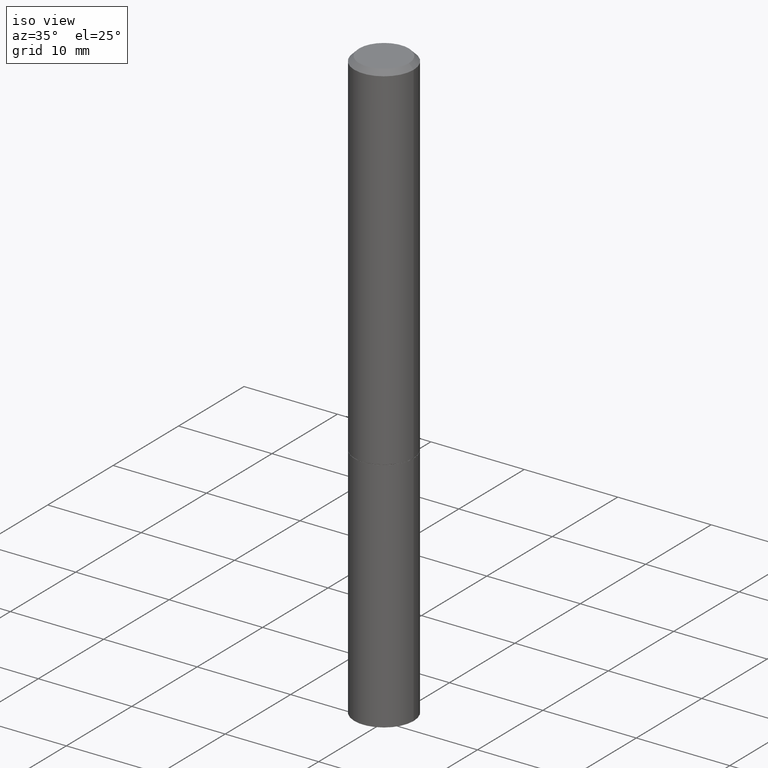
[diagram: clean part render]
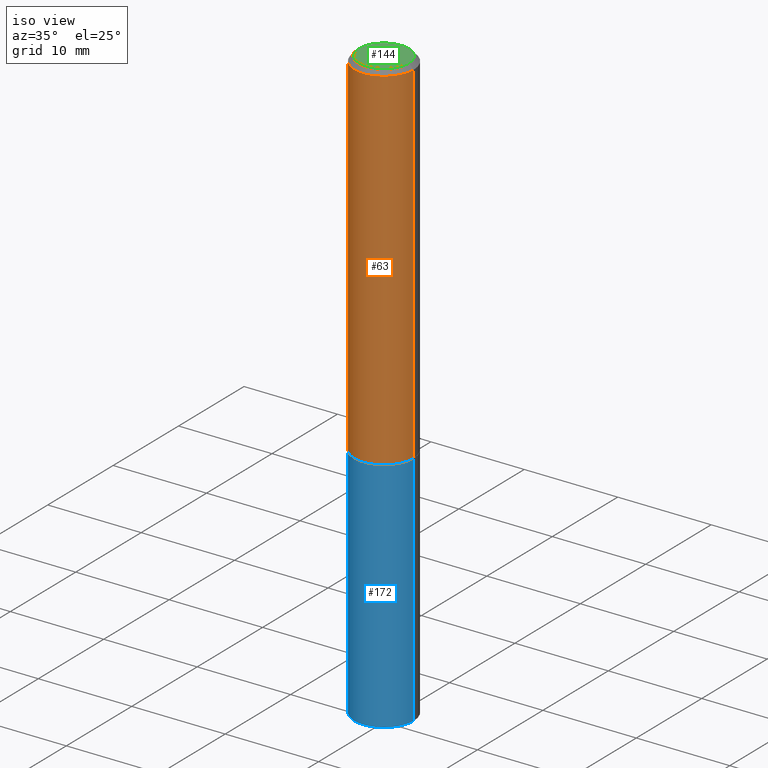
[diagram: same view with three faces highlighted in distinct colors, each labeled with its STEP entity id]
A machine part, iso view with three faces highlighted in distinct colors.
Their STEP definitions:

[orange] entity #63 — the highlighted cylindrical surface (edge-blend (fillet) strip) has radius 3.175 mm, axis along (-0, 0, 1).
#3 = FACE_OUTER_BOUND ( 'NONE', #124, .T. ) ;
#4 = CIRCLE ( 'NONE', #70, 0.1250000000000000278 ) ;
#7 = CARTESIAN_POINT ( 'NONE',  ( 3.665757740471519853E-29, -5.233730526925875958E-15, -1.499000000000000110 ) ) ;
#34 = DIRECTION ( 'NONE',  ( 1.000000000000000000, -6.982962677686266711E-15, 4.876176775795935793E-29 ) ) ;
#38 = CARTESIAN_POINT ( 'NONE',  ( 0.1250000000000000278, -6.106600861636660086E-15, -1.499000000000000110 ) ) ;
#49 = LINE ( 'NONE', #310, #242 ) ;
#50 = DIRECTION ( 'NONE',  ( -2.445468806185136877E-29, 3.491481338843145188E-15, 1.000000000000000000 ) ) ;
#57 = DIRECTION ( 'NONE',  ( -2.445468806185136597E-29, 3.491481338843145583E-15, 1.000000000000000000 ) ) ;
#62 = CYLINDRICAL_SURFACE ( 'NONE', #351, 0.1249999999999999306 ) ;
#63 = ADVANCED_FACE ( 'NONE', ( #3 ), #62, .T. ) ;
#70 = AXIS2_PLACEMENT_3D ( 'NONE', #7, #122, #88 ) ;
#88 = DIRECTION ( 'NONE',  ( 1.000000000000000000, -6.982962677686269077E-15, 0.000000000000000000 ) ) ;
#97 = ORIENTED_EDGE ( 'NONE', *, *, #153, .F. ) ;
#100 = EDGE_CURVE ( 'NONE', #297, #359, #4, .T. ) ;
#104 = EDGE_CURVE ( 'NONE', #193, #320, #169, .T. ) ;
#122 = DIRECTION ( 'NONE',  ( -2.445468806185136597E-29, 3.491481338843145583E-15, 1.000000000000000000 ) ) ;
#124 = EDGE_LOOP ( 'NONE', ( #97, #303, #277, #327 ) ) ;
#146 = CARTESIAN_POINT ( 'NONE',  ( -0.1250000000000000555, -1.763601657151242227E-15, -1.499000000000000110 ) ) ;
#147 = DIRECTION ( 'NONE',  ( 1.000000000000000000, -6.982962677686266711E-15, 0.000000000000000000 ) ) ;
#153 = EDGE_CURVE ( 'NONE', #297, #193, #49, .T. ) ;
#156 = EDGE_CURVE ( 'NONE', #359, #320, #198, .T. ) ;
#162 = CARTESIAN_POINT ( 'NONE',  ( -0.1249999999999998335, 8.030407079339190545E-16, -0.02000000000000006287 ) ) ;
#169 = CIRCLE ( 'NONE', #268, 0.1249999999999998335 ) ;
#193 = VERTEX_POINT ( 'NONE', #162 ) ;
#198 = LINE ( 'NONE', #338, #288 ) ;
#201 = CARTESIAN_POINT ( 'NONE',  ( 0.000000000000000000, 0.000000000000000000, 0.000000000000000000 ) ) ;
#207 = CARTESIAN_POINT ( 'NONE',  ( 4.890937612370288923E-31, -6.982962677686312563E-17, -0.02000000000000006287 ) ) ;
#242 = VECTOR ( 'NONE', #50, 39.37007874015748143 ) ;
#268 = AXIS2_PLACEMENT_3D ( 'NONE', #207, #57, #147 ) ;
#277 = ORIENTED_EDGE ( 'NONE', *, *, #156, .T. ) ;
#288 = VECTOR ( 'NONE', #366, 39.37007874015748143 ) ;
#297 = VERTEX_POINT ( 'NONE', #146 ) ;
#303 = ORIENTED_EDGE ( 'NONE', *, *, #100, .T. ) ;
#310 = CARTESIAN_POINT ( 'NONE',  ( -0.1249999999999999306, 8.881784197001247393E-16, -6.148668862818628724E-30 ) ) ;
#314 = DIRECTION ( 'NONE',  ( -2.445468806185136597E-29, 3.491481338843145583E-15, 1.000000000000000000 ) ) ;
#320 = VERTEX_POINT ( 'NONE', #350 ) ;
#327 = ORIENTED_EDGE ( 'NONE', *, *, #104, .F. ) ;
#338 = CARTESIAN_POINT ( 'NONE',  ( 0.1249999999999999306, -8.728703347107828458E-16, 6.095220969744916238E-30 ) ) ;
#350 = CARTESIAN_POINT ( 'NONE',  ( 0.1249999999999998335, -9.273918764983033630E-16, -0.02000000000000006287 ) ) ;
#351 = AXIS2_PLACEMENT_3D ( 'NONE', #201, #314, #34 ) ;
#359 = VERTEX_POINT ( 'NONE', #38 ) ;
#366 = DIRECTION ( 'NONE',  ( -2.445468806185136877E-29, 3.491481338843145188E-15, 1.000000000000000000 ) ) ;

[blue] entity #172 — the highlighted cylindrical surface (edge-blend (fillet) strip) has radius 3.175 mm, axis along (-0, 0, 1).
#9 = DIRECTION ( 'NONE',  ( 1.000000000000000000, -6.982962677686266711E-15, 4.876176775795935793E-29 ) ) ;
#11 = LINE ( 'NONE', #148, #98 ) ;
#17 = EDGE_LOOP ( 'NONE', ( #205, #275, #243, #151 ) ) ;
#35 = VERTEX_POINT ( 'NONE', #76 ) ;
#37 = VECTOR ( 'NONE', #306, 39.37007874015748143 ) ;
#44 = EDGE_CURVE ( 'NONE', #348, #321, #219, .T. ) ;
#54 = CARTESIAN_POINT ( 'NONE',  ( 0.1250000000000000000, -9.601573681818648281E-15, -2.500000000000000000 ) ) ;
#65 = DIRECTION ( 'NONE',  ( -2.445468806185136877E-29, 3.491481338843145188E-15, 1.000000000000000000 ) ) ;
#73 = CARTESIAN_POINT ( 'NONE',  ( 6.113672015462842613E-29, -8.728703347107864943E-15, -2.500000000000000000 ) ) ;
#76 = CARTESIAN_POINT ( 'NONE',  ( 0.1250000000000000000, -6.110092342975501516E-15, -1.500000000000000222 ) ) ;
#78 = CIRCLE ( 'NONE', #293, 0.1250000000000000000 ) ;
#92 = AXIS2_PLACEMENT_3D ( 'NONE', #265, #139, #292 ) ;
#98 = VECTOR ( 'NONE', #65, 39.37007874015748143 ) ;
#116 = CARTESIAN_POINT ( 'NONE',  ( 0.000000000000000000, 0.000000000000000000, 0.000000000000000000 ) ) ;
#127 = EDGE_CURVE ( 'NONE', #348, #181, #78, .T. ) ;
#139 = DIRECTION ( 'NONE',  ( -2.445468806185136597E-29, 3.491481338843145583E-15, 1.000000000000000000 ) ) ;
#148 = CARTESIAN_POINT ( 'NONE',  ( 0.1250000000000000000, -8.728703347107833388E-16, 6.095220969744919741E-30 ) ) ;
#151 = ORIENTED_EDGE ( 'NONE', *, *, #218, .F. ) ;
#172 = ADVANCED_FACE ( 'NONE', ( #199 ), #202, .T. ) ;
#181 = VERTEX_POINT ( 'NONE', #54 ) ;
#187 = CARTESIAN_POINT ( 'NONE',  ( -0.1250000000000000000, 8.881784197001252323E-16, -6.148668862818632227E-30 ) ) ;
#199 = FACE_OUTER_BOUND ( 'NONE', #17, .T. ) ;
#202 = CYLINDRICAL_SURFACE ( 'NONE', #305, 0.1250000000000000000 ) ;
#205 = ORIENTED_EDGE ( 'NONE', *, *, #44, .F. ) ;
#218 = EDGE_CURVE ( 'NONE', #321, #35, #280, .T. ) ;
#219 = LINE ( 'NONE', #187, #37 ) ;
#233 = DIRECTION ( 'NONE',  ( -2.445468806185136597E-29, 3.491481338843145583E-15, 1.000000000000000000 ) ) ;
#243 = ORIENTED_EDGE ( 'NONE', *, *, #344, .T. ) ;
#249 = CARTESIAN_POINT ( 'NONE',  ( -0.1250000000000000000, -6.094784257986165933E-15, -1.500000000000000222 ) ) ;
#254 = DIRECTION ( 'NONE',  ( -2.445468806185136597E-29, 3.491481338843145583E-15, 1.000000000000000000 ) ) ;
#258 = DIRECTION ( 'NONE',  ( 1.000000000000000000, -6.982962677686270655E-15, 0.000000000000000000 ) ) ;
#265 = CARTESIAN_POINT ( 'NONE',  ( 3.668203209277704895E-29, -5.237222008264718177E-15, -1.500000000000000222 ) ) ;
#273 = CARTESIAN_POINT ( 'NONE',  ( -0.1250000000000000000, -6.094784257986165933E-15, -2.500000000000000000 ) ) ;
#275 = ORIENTED_EDGE ( 'NONE', *, *, #127, .T. ) ;
#280 = CIRCLE ( 'NONE', #92, 0.1250000000000000000 ) ;
#292 = DIRECTION ( 'NONE',  ( 1.000000000000000000, -6.982962677686262766E-15, 0.000000000000000000 ) ) ;
#293 = AXIS2_PLACEMENT_3D ( 'NONE', #73, #254, #258 ) ;
#305 = AXIS2_PLACEMENT_3D ( 'NONE', #116, #233, #9 ) ;
#306 = DIRECTION ( 'NONE',  ( -2.445468806185136877E-29, 3.491481338843145188E-15, 1.000000000000000000 ) ) ;
#321 = VERTEX_POINT ( 'NONE', #249 ) ;
#344 = EDGE_CURVE ( 'NONE', #181, #35, #11, .T. ) ;
#348 = VERTEX_POINT ( 'NONE', #273 ) ;

[green] entity #144 — the highlighted planar face has unit normal (0, -0, -1).
#2 = CARTESIAN_POINT ( 'NONE',  ( 8.350811314681758556E-46, -1.192274536304357760E-31, -3.414809992080329023E-17 ) ) ;
#23 = PLANE ( 'NONE',  #364 ) ;
#30 = DIRECTION ( 'NONE',  ( -2.445468806185136597E-29, 3.491481338843145583E-15, 1.000000000000000000 ) ) ;
#31 = AXIS2_PLACEMENT_3D ( 'NONE', #2, #123, #296 ) ;
#52 = DIRECTION ( 'NONE',  ( 1.000000000000000000, -6.982962677686265922E-15, 4.874400871621244381E-29 ) ) ;
#74 = FACE_OUTER_BOUND ( 'NONE', #94, .T. ) ;
#89 = VERTEX_POINT ( 'NONE', #345 ) ;
#91 = CARTESIAN_POINT ( 'NONE',  ( 8.350811314681758556E-46, -1.192274536304357760E-31, -3.414809992080329023E-17 ) ) ;
#94 = EDGE_LOOP ( 'NONE', ( #281, #183 ) ) ;
#112 = DIRECTION ( 'NONE',  ( 2.438088387897960049E-29, -3.491481338843145188E-15, -1.000000000000000000 ) ) ;
#123 = DIRECTION ( 'NONE',  ( -2.445468806185136597E-29, 3.491481338843145583E-15, 1.000000000000000000 ) ) ;
#132 = VERTEX_POINT ( 'NONE', #159 ) ;
#144 = ADVANCED_FACE ( 'NONE', ( #74 ), #23, .F. ) ;
#159 = CARTESIAN_POINT ( 'NONE',  ( 0.1049999999999998712, -8.238720831321566783E-16, -3.414809992079784832E-17 ) ) ;
#183 = ORIENTED_EDGE ( 'NONE', *, *, #189, .T. ) ;
#186 = CIRCLE ( 'NONE', #31, 0.1049999999999998712 ) ;
#189 = EDGE_CURVE ( 'NONE', #132, #89, #186, .T. ) ;
#195 = DIRECTION ( 'NONE',  ( -1.000000000000000000, 6.982962677686265922E-15, -4.876176775795935793E-29 ) ) ;
#213 = AXIS2_PLACEMENT_3D ( 'NONE', #91, #30, #52 ) ;
#228 = EDGE_CURVE ( 'NONE', #89, #132, #264, .T. ) ;
#264 = CIRCLE ( 'NONE', #213, 0.1049999999999998712 ) ;
#281 = ORIENTED_EDGE ( 'NONE', *, *, #228, .T. ) ;
#296 = DIRECTION ( 'NONE',  ( 1.000000000000000000, -6.982962677686265922E-15, 4.874400871621244381E-29 ) ) ;
#309 = CARTESIAN_POINT ( 'NONE',  ( 7.332110811570570383E-16, 0.1049999999999998712, -3.836795905389314585E-16 ) ) ;
#345 = CARTESIAN_POINT ( 'NONE',  ( -0.1049999999999998712, 7.681258945454879971E-16, -3.414809992080853492E-17 ) ) ;
#364 = AXIS2_PLACEMENT_3D ( 'NONE', #309, #112, #195 ) ;